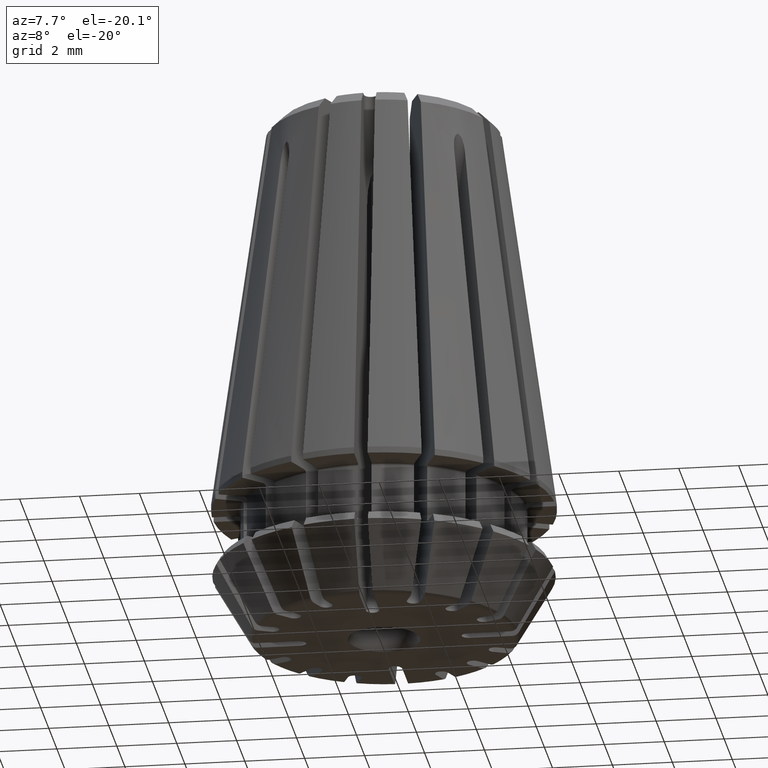
[diagram: clean part render]
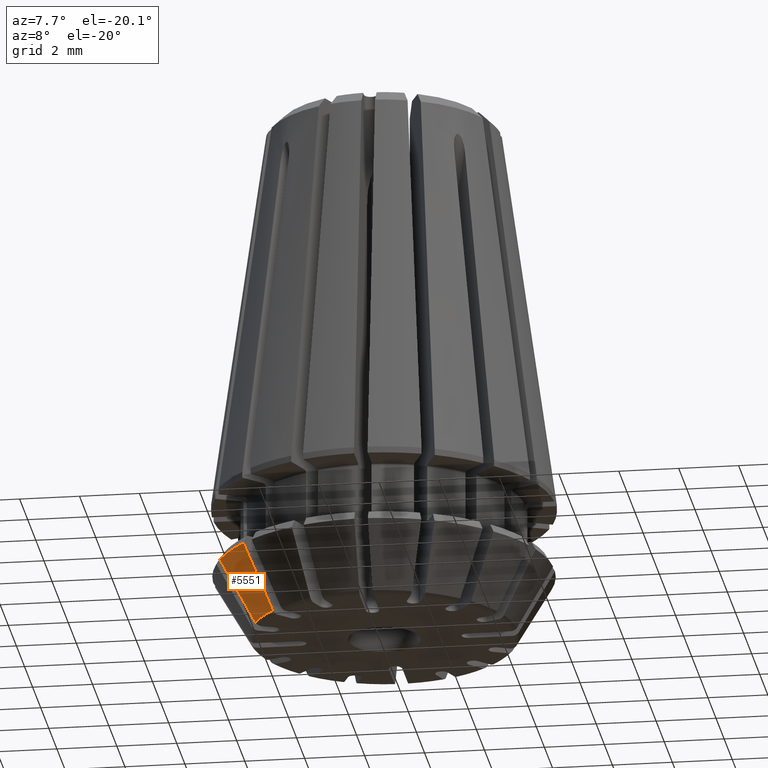
[diagram: same view with one face highlighted and labeled with its STEP entity id]
A machine part, auxiliary view. The second image highlights one B-rep face of the part: STEP entity #5551.
In plain terms, the highlighted conical surface has half-angle 30 deg.
Its self-contained STEP definition (entity closure, byte-faithful):
#35=CONICAL_SURFACE('',#5950,5.85,0.523598775598299);
#1203=CIRCLE('',#5933,4.46785702773388);
#1207=CIRCLE('',#5940,5.68094010767586);
#1213=CIRCLE('',#5951,11424.6081012924);
#1214=CIRCLE('',#5952,11424.6078751886);
#1678=ORIENTED_EDGE('',*,*,#3474,.T.);
#1679=ORIENTED_EDGE('',*,*,#3459,.T.);
#1680=ORIENTED_EDGE('',*,*,#3475,.T.);
#1681=ORIENTED_EDGE('',*,*,#3450,.F.);
#3450=EDGE_CURVE('',#4337,#4335,#1203,.T.);
#3459=EDGE_CURVE('',#4346,#4344,#1207,.T.);
#3474=EDGE_CURVE('',#4337,#4346,#1213,.T.);
#3475=EDGE_CURVE('',#4344,#4335,#1214,.T.);
#4335=VERTEX_POINT('',#8607);
#4337=VERTEX_POINT('',#8611);
#4344=VERTEX_POINT('',#8636);
#4346=VERTEX_POINT('',#8639);
#4886=EDGE_LOOP('',(#1678,#1679,#1680,#1681));
#5180=FACE_BOUND('',#4886,.T.);
#5551=ADVANCED_FACE('',(#5180),#35,.T.);
#5933=AXIS2_PLACEMENT_3D('',#8612,#6752,#6753);
#5940=AXIS2_PLACEMENT_3D('',#8638,#6769,#6770);
#5950=AXIS2_PLACEMENT_3D('',#8673,#6796,#6797);
#5951=AXIS2_PLACEMENT_3D('',#8674,#6798,#6799);
#5952=AXIS2_PLACEMENT_3D('',#8675,#6800,#6801);
#6752=DIRECTION('',(0.,0.,-1.));
#6753=DIRECTION('',(-1.,0.,0.));
#6769=DIRECTION('',(0.,0.,-1.));
#6770=DIRECTION('',(-1.,0.,0.));
#6796=DIRECTION('',(0.,0.,1.));
#6797=DIRECTION('',(1.,0.,0.));
#6798=DIRECTION('',(-0.707106781213987,0.707106781159108,-2.24745488967061E-11));
#6799=DIRECTION('',(-0.61218192543709,-0.612181925500509,-0.500466362764398));
#6800=DIRECTION('',(0.38268343240503,-0.923879532494743,2.49572025565542E-11));
#6801=DIRECTION('',(-0.799952428547307,-0.331351145211619,-0.500282450849732));
#8607=CARTESIAN_POINT('',(-4.03642035727571,-1.91547830048824,-4.39394185128918));
#8611=CARTESIAN_POINT('',(-3.31434239358118,-2.99614434204723,-4.39394185128918));
#8612=CARTESIAN_POINT('',(0.,0.,-4.39394185128918));
#8636=CARTESIAN_POINT('',(-5.15828238352684,-2.38016876687282,-2.29282032302753));
#8638=CARTESIAN_POINT('',(0.,0.,-2.29282032302753));
#8639=CARTESIAN_POINT('',(-4.17297841527285,-3.85478036373891,-2.29282032302753));
#8673=CARTESIAN_POINT('',(0.,0.,-2.));
#8674=CARTESIAN_POINT('',(6990.62424241978,6990.94244119586,5713.2381206112));
#8675=CARTESIAN_POINT('',(9133.98453257431,3783.17673427056,5713.23800747349));